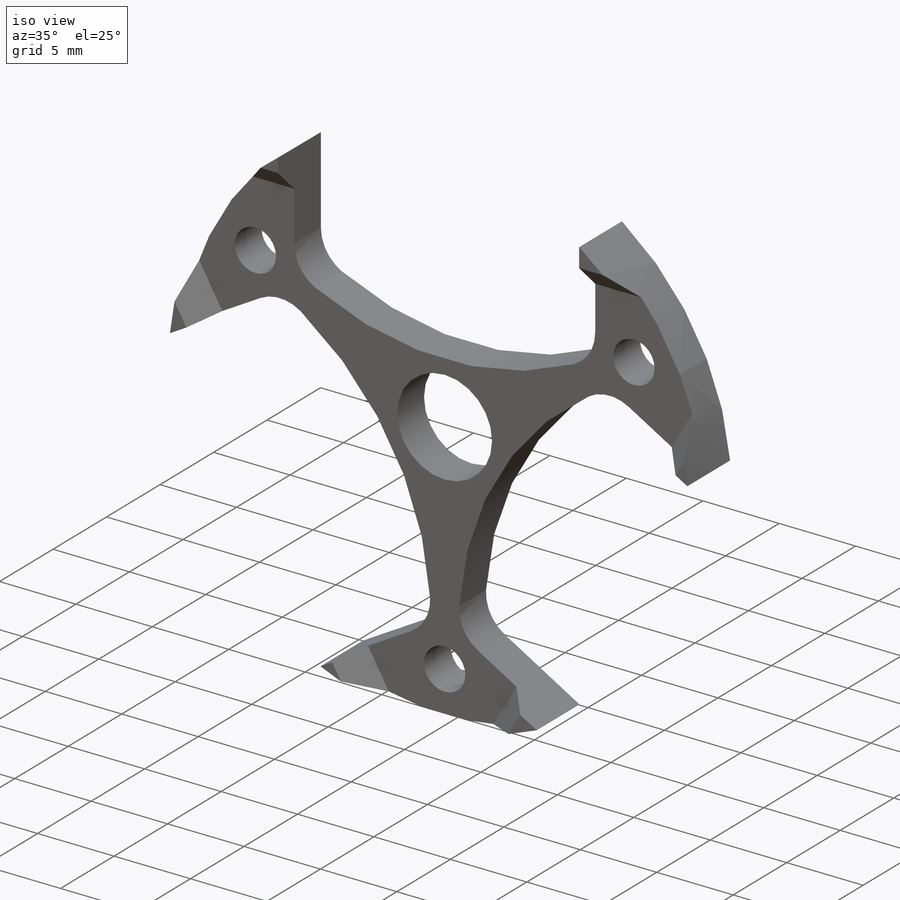
[diagram: iso view]
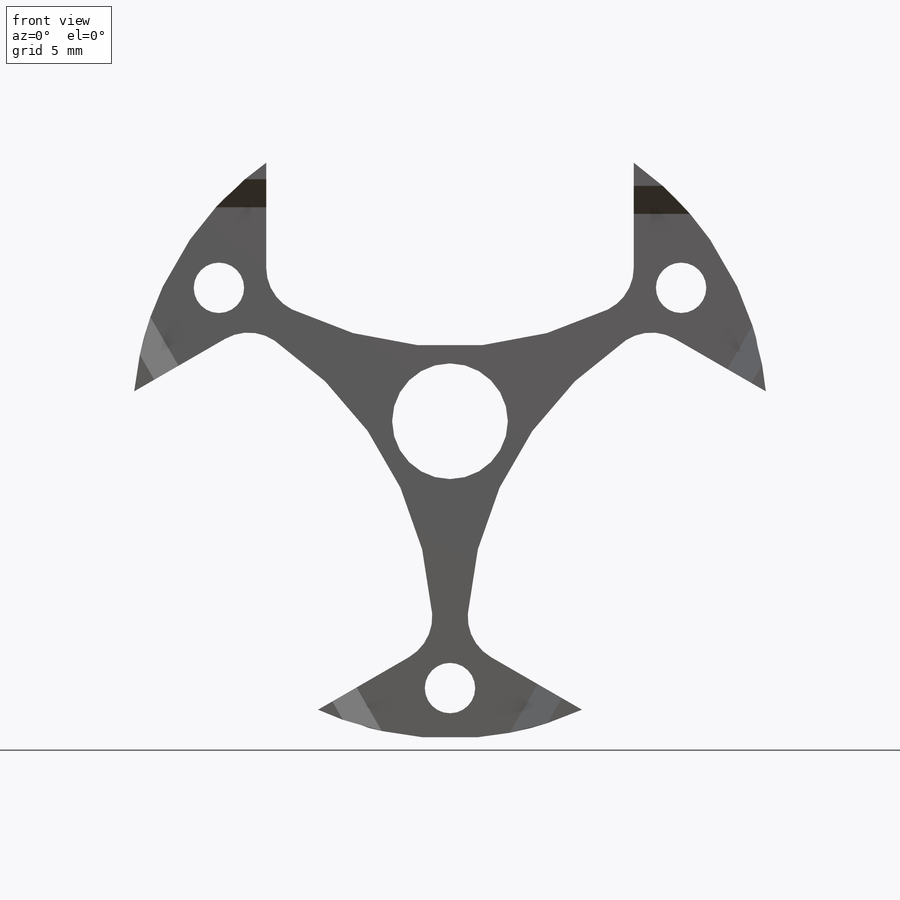
[diagram: front view]
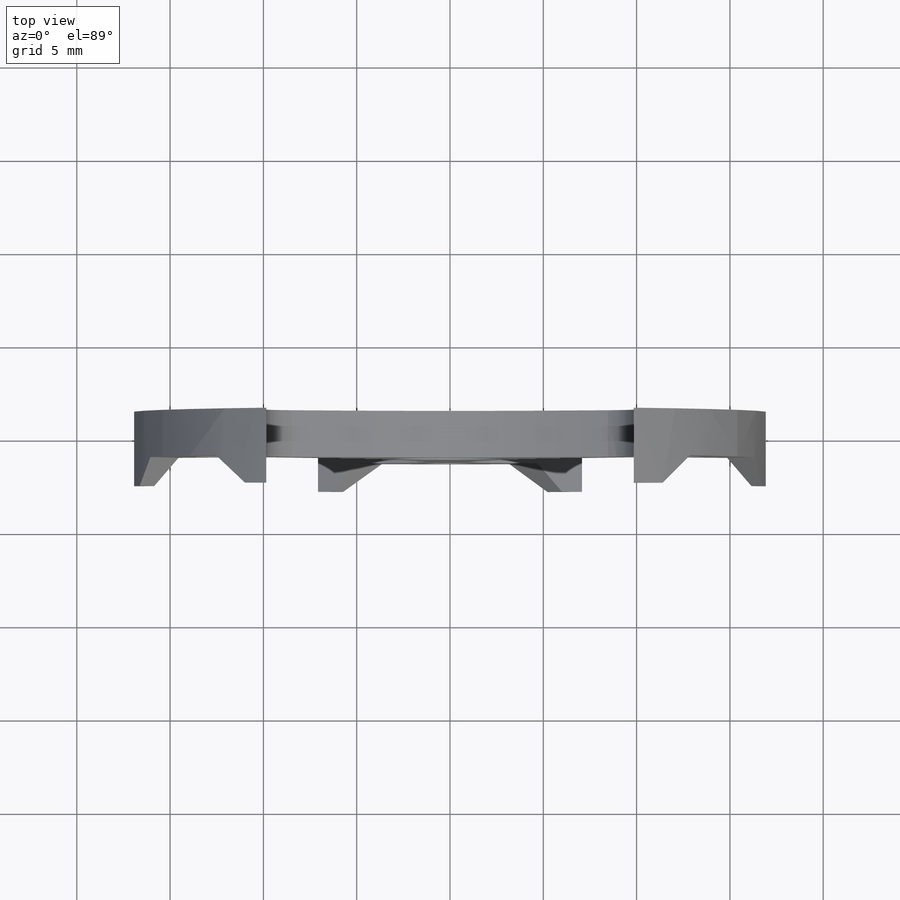
[diagram: top view]
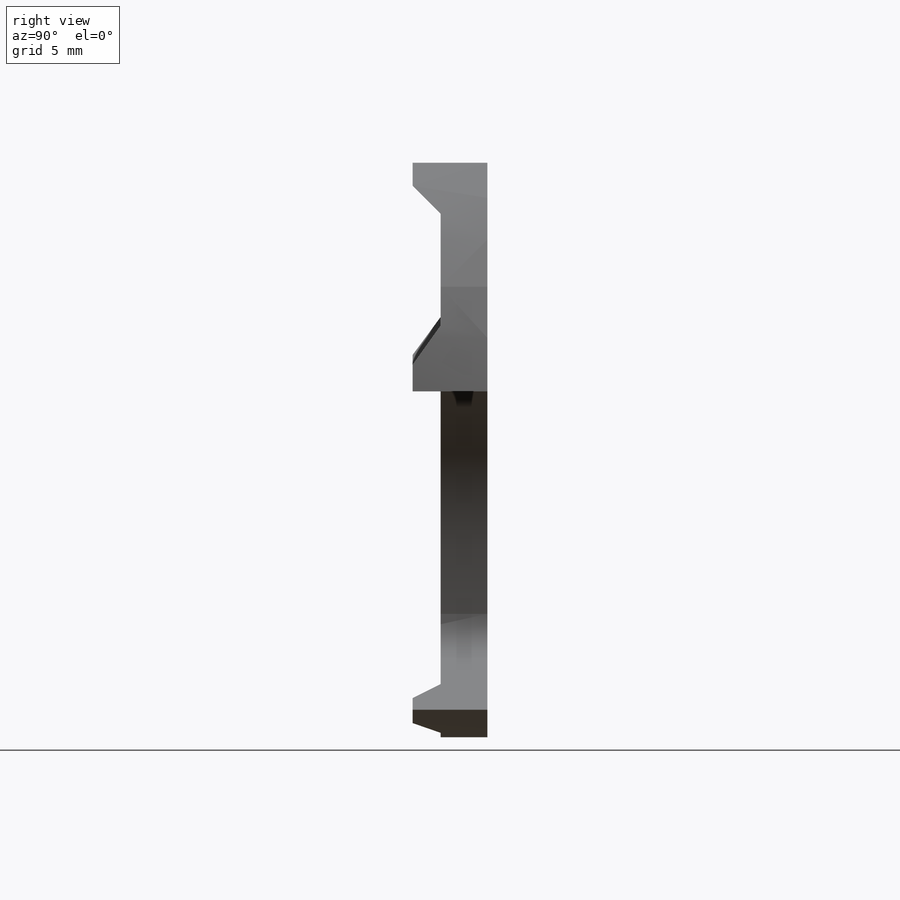
[diagram: right view]
SOLIDWORKS PART (.sldprt)
format: sldprt  version: not decoded by parser v0  size: 330,240 bytes
history: native  units: mm
features: sketch x8, plane x3, extrude x3, hole x2, pattern_circular x2, material x1, cut_extrude x1 (+10 scaffold rows collapsed)
feature tree (30):
  scaffold x10  (default folders/planes/origin — collapsed)
  material  "7075-T6 (SN)"
  plane  "Face"
  plane  "Dessus"
  plane  "Droite"
  sketch  "Esquisse1"  dims[D1=34.0mm]
  extrude  "Boss.-Extru.1"  Depth=2.5mm
  sketch  "Esquisse2"  dims[D2=19.0mm D4=2.5mm D1=19.7mm D3=23.0mm]
  cut_extrude  "Enlèv. mat.-Extru.1"  [1 undecoded]
  hole  "Dégagement M2.51"  Diameter=2.7mm Depth=2.5mm
  sketch  "Esquisse4"  dims[c1.D1=~10.325609mm c2.D1=60.0deg c2.D2=14.3mm]
  sketch  "Esquisse3"  dims[hole-wizard template sketch: 59 standard entries collapsed; hole parameters kept: c18.Diamètre du perçage jusqu'au prochain=2.7mm c18.Profondeur du perçage jusqu'au prochain=2.5mm]
  pattern_circular  "Répétition circulaire1"  Count=3 Angle=360deg
  hole  "Diamètre du perçage Ø6.2 (6.2)1"  Diameter=6.2mm Depth=2.5mm
  sketch  "Esquisse6"
  sketch  "Esquisse5"  dims[hole-wizard template sketch: 59 standard entries collapsed; hole parameters kept: c18.Diamètre du perçage jusqu'au prochain=6.2mm c18.Profondeur du perçage jusqu'au prochain=2.5mm]
  sketch  "Esquisse8"  dims[c1.D3=2.5mm c1.D5=2.5mm c1.D1=~3.435284mm c2.D1=45.0deg c2.D2=4.0mm c2.D4=11.5mm c2.D5=4.3mm]
  extrude  "Boss.-Extru.2"  [1 undecoded]
  sketch  "Esquisse9"  dims[D1=2.0mm D2=11.5mm]
  extrude  "Boss.-Extru.3"  [1 undecoded]
  pattern_circular  "Répétition circulaire2"  Count=3 Angle=360deg
decode coverage: 12 of 16 modeling features carry decoded parameters
note: ~ marks probable driven/reference dimensions
note: 3 parameter values undecoded
summary: no parameter record found for 3 features
note: suppression state not decoded; provenance and decode notes live in map.json
